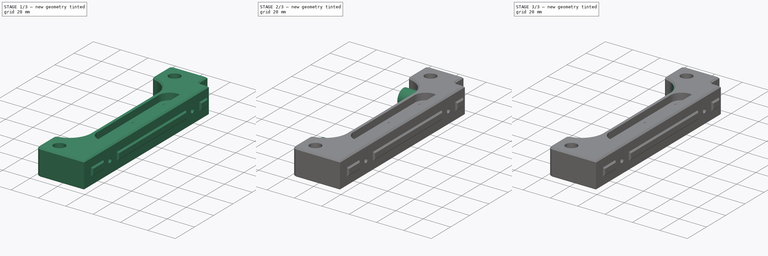
[diagram: build sequence overview — one tinted view per stage of 3, left to right]
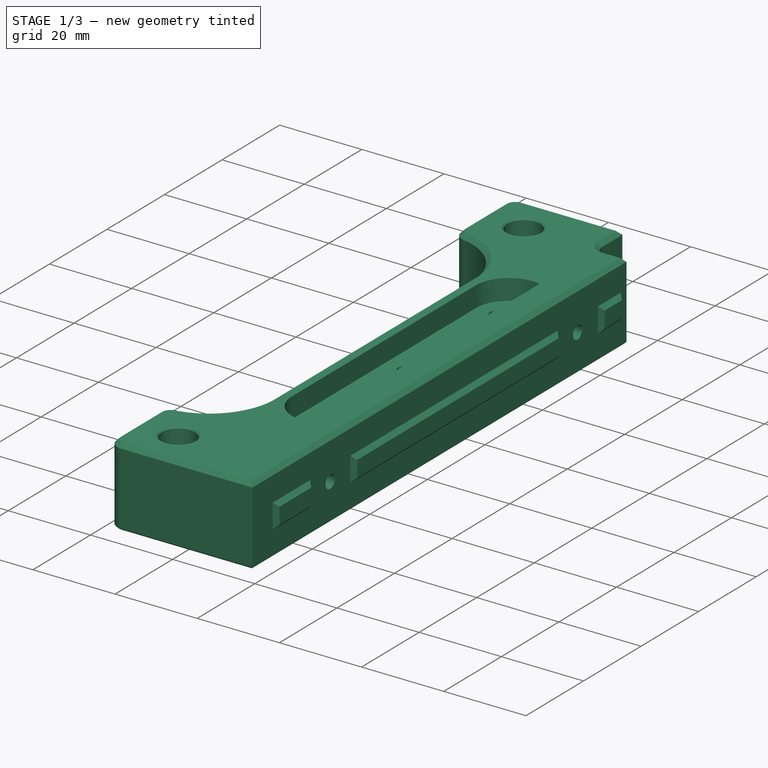
[diagram: stage 1 of 3 — iso view after this stage's code; geometry added in this stage tinted green]
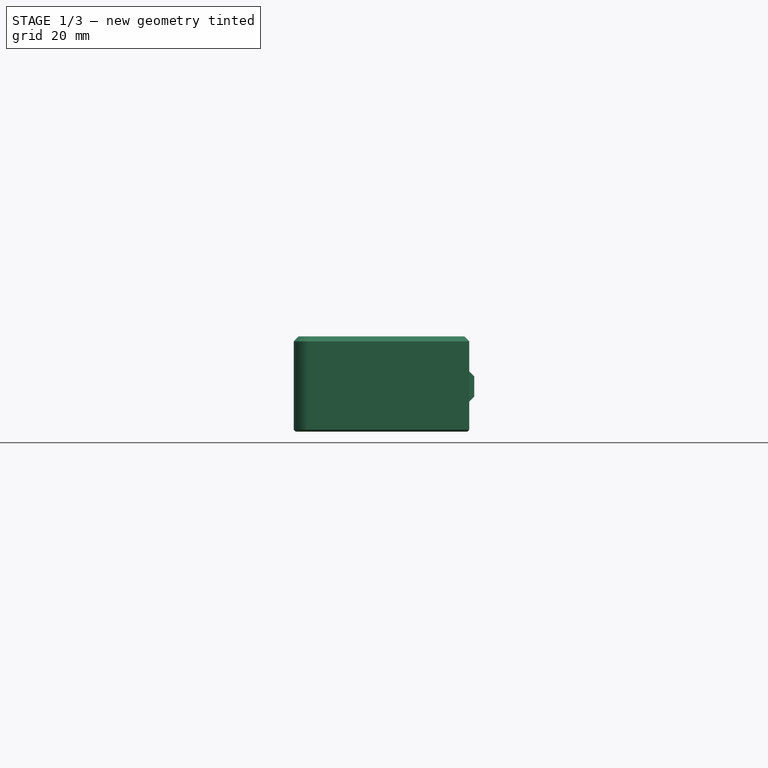
[diagram: stage 1 of 3 — front view after this stage's code; geometry added in this stage tinted green]
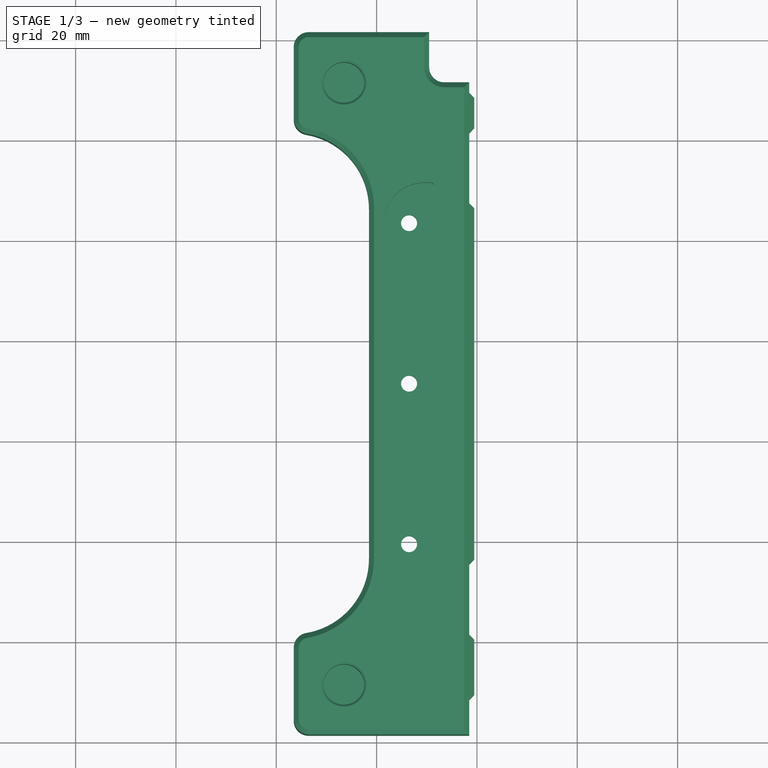
[diagram: stage 1 of 3 — top view after this stage's code; geometry added in this stage tinted green]
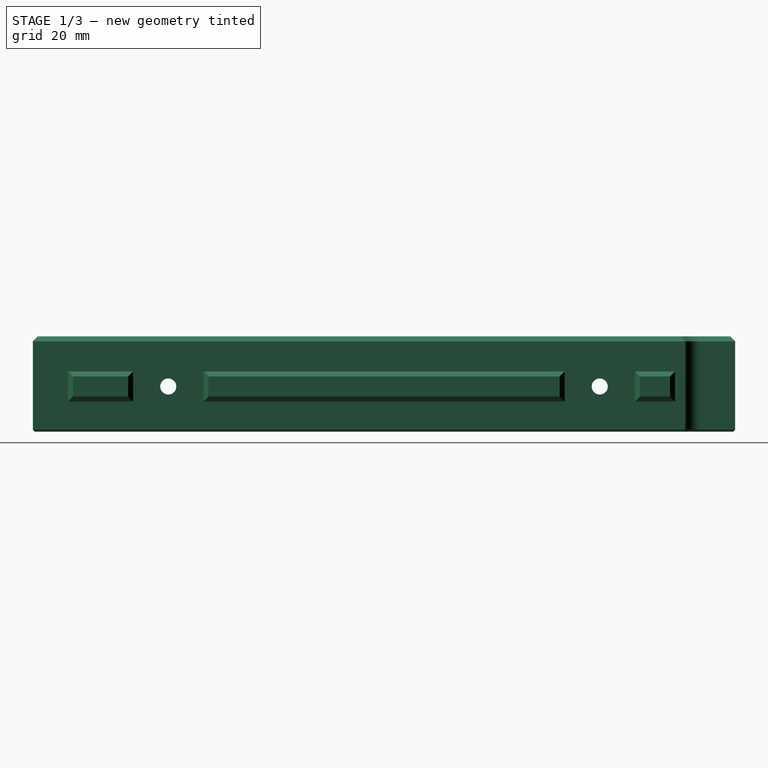
[diagram: stage 1 of 3 — right view after this stage's code; geometry added in this stage tinted green]
FCSTD DOCUMENT  (FreeCAD 2023.810R14555 (Git shallow))
Label: Trident_Internal_Spool___back_foot_m3
License: All rights reserved
LicenseURL: https://en.wikipedia.org/wiki/All_rights_reserved
objects: Sketcher::SketchObject×4, PartDesign::Pad×3, PartDesign::SubShapeBinder×2, Part::Feature×1, Part::Refine×1, PartDesign::FeatureBase×1, PartDesign::Pocket×1, PartDesign::Boolean×1, PartDesign::Body×1
note: 29 computed .brp shape members not serialized (recipe doc carries the construction recipe); baked Part::Feature solids carry a one-line shape summary decoded from their .brp

FEATURE [Part::Feature] Trident_Internal_Spool___back_foot_001_solid  label="Trident_Internal_Spool___back_foot_001 (Solid)"
  FixShape = 1
  InvalidShape = false
  TreeRank = 3
  ValidateShape = false
  shape: bbox 36 x 140 x 19 mm, 5928 faces (baked)
FEATURE [Part::Refine] Refined  label="Trident_Internal_Spool___back_foot_001 (Solid)001"
  FixShape = 1
  InvalidShape = false
  Source = -> Trident_Internal_Spool___back_foot_001_solid
  TreeRank = 4
  ValidateShape = false
FEATURE [PartDesign::FeatureBase] BaseFeature
  BaseFeature = -> Refined
  FixShape = 1
  InvalidShape = false
  NewSolid = false
  Suppress = false
  TreeRank = 14
  ValidateShape = false
FEATURE [Sketcher::SketchObject] Sketch
  ArcFitTolerance = 1e-06
  AttachmentSupport = -> [BaseFeature]
  ExternalBSplineMaxDegree = 5
  ExternalBSplineTolerance = 0.0001
  ExternalGeometry = -> [BaseFeature]
  FixShape = 1
  FullyConstrained = true
  InternalTolerance = 1e-06
  InvalidShape = false
  MakeInternals = false
  MapMode = 5
  Placement = pos=(218.473,0,0) rot=(0.57735,0.57735,0.57735;2.0944rad)
  Support = -> [BaseFeature]
  TreeRank = 18
  ValidateShape = false
  sketch-geometry (6):
    g0: Circle [constr] CenterX=108.375 CenterY=9 CenterZ=0 NormalX=0 NormalY=0 NormalZ=1 AngleXU=0 Radius=2.6
    g1: Circle CenterX=108.375 CenterY=9 CenterZ=0 NormalX=0 NormalY=0 NormalZ=1 AngleXU=0 Radius=1.6
    g2: Circle CenterX=108.375 CenterY=9 CenterZ=0 NormalX=0 NormalY=0 NormalZ=1 AngleXU=0 Radius=2.75
    g3: Circle [constr] CenterX=194.375 CenterY=9 CenterZ=0 NormalX=0 NormalY=0 NormalZ=1 AngleXU=0 Radius=2.6
    g4: Circle CenterX=194.375 CenterY=9 CenterZ=0 NormalX=0 NormalY=0 NormalZ=1 AngleXU=0 Radius=1.6
    g5: Circle CenterX=194.375 CenterY=9 CenterZ=0 NormalX=0 NormalY=0 NormalZ=1 AngleXU=0 Radius=2.75
  constraints (14):
    c: PointOnObject(g-4,g0)
    c: PointOnObject(g-5,g0)
    c: PointOnObject(g-3,g0)
    c: Coincident(g1,g0)
    c: Coincident(g2,g1)
    c: Diameter(g1) = 3.2
    c: Diameter(g2) = 5.5
    c: PointOnObject(g-6,g3)
    c: PointOnObject(g-7,g3)
    c: PointOnObject(g-8,g3)
    c: Coincident(g4,g3)
    c: Coincident(g5,g4)
    c: Diameter(g4) = 3.2
    c: Diameter(g5) = 5.5
FEATURE [PartDesign::Pad] Pad
  AddSubType = 0
  AlongSketchNormal = false
  AutoTaperInnerAngle = true
  BaseFeature = -> BaseFeature
  CheckUpToFaceLimits = true
  ClaimChildren = false
  Direction = (1,0,0)
  Fit = 0
  FitJoin = 0
  FixShape = 1
  InnerFit = 0
  InnerFitJoin = 0
  InvalidShape = false
  Length = 10
  Length2 = 10
  Linearize = true
  NewSolid = false
  Profile = -> Sketch
  ReferenceAxis = -> Sketch [N_Axis]
  Refine = true
  Suppress = false
  TaperInnerAngle = 0
  TaperInnerAngleRev = 0
  TreeRank = 19
  Type = 3
  UpToFace = -> BaseFeature [Face3661]
  ValidateShape = false
  _ProfileBasedVersion = 1
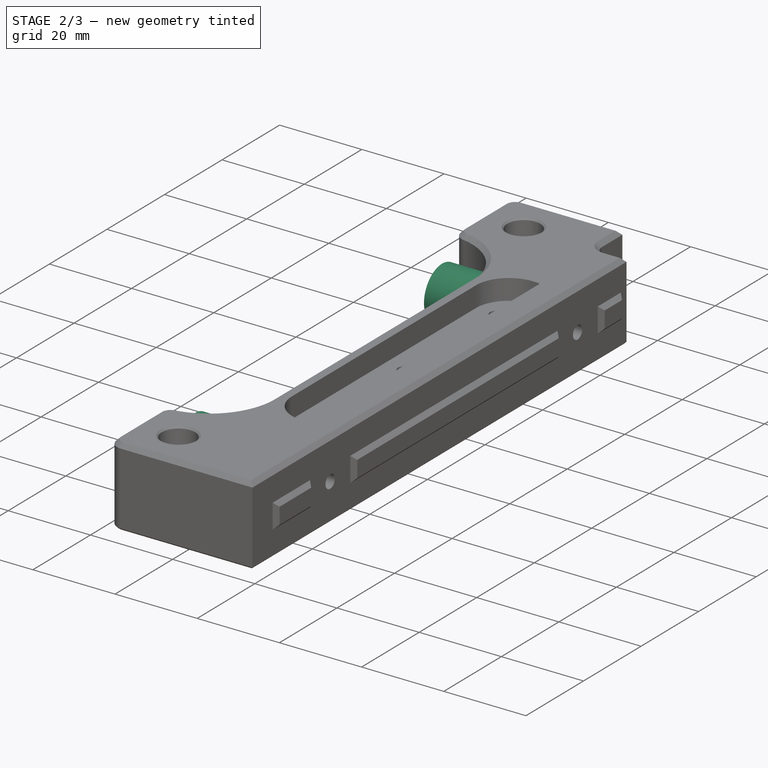
[diagram: stage 2 of 3 — iso view after this stage's code; geometry added in this stage tinted green]
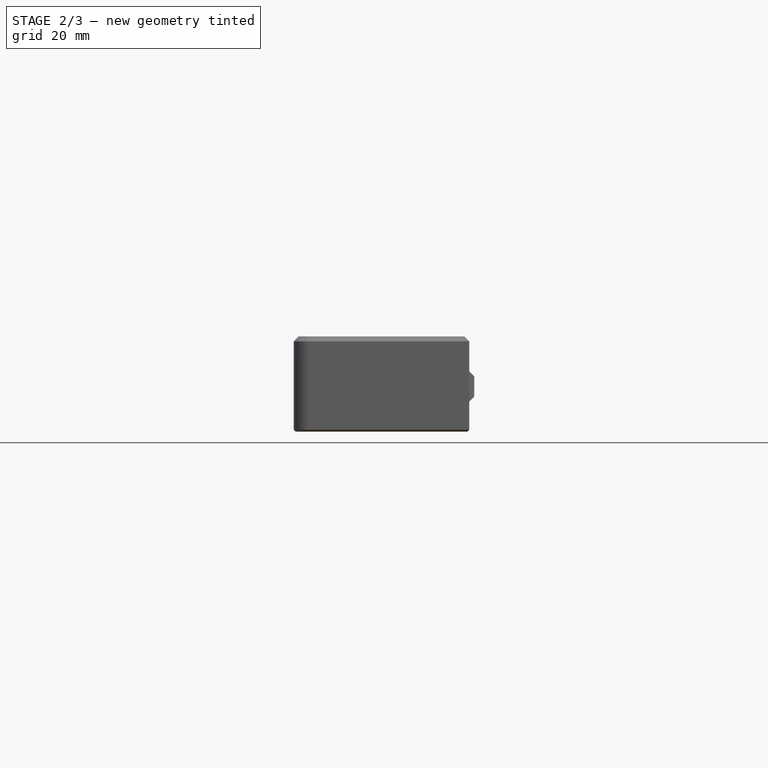
[diagram: stage 2 of 3 — front view after this stage's code; geometry added in this stage tinted green]
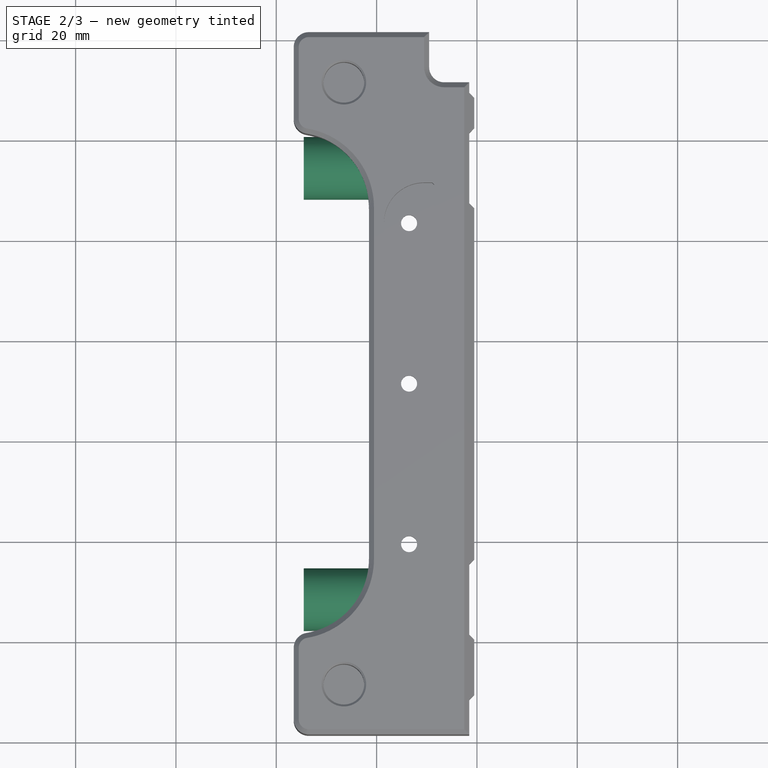
[diagram: stage 2 of 3 — top view after this stage's code; geometry added in this stage tinted green]
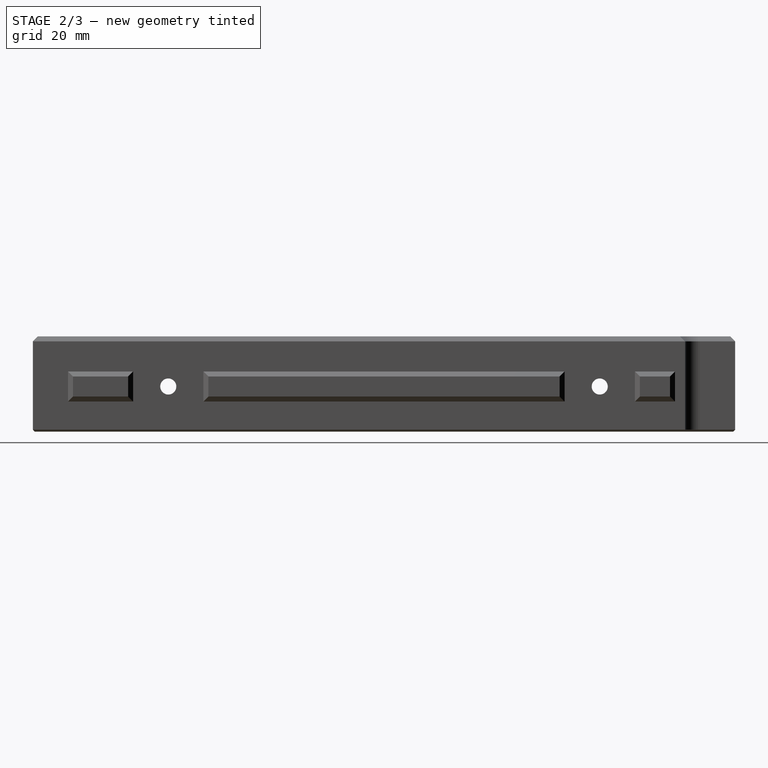
[diagram: stage 2 of 3 — right view after this stage's code; geometry added in this stage tinted green]
FEATURE [Sketcher::SketchObject] Sketch001
  ArcFitTolerance = 1e-06
  AttachmentSupport = -> [Pad]
  ExternalBSplineMaxDegree = 5
  ExternalBSplineTolerance = 0.0001
  ExternalGeometry = -> [Pad]
  FixShape = 1
  FullyConstrained = true
  InternalTolerance = 1e-06
  InvalidShape = false
  MakeInternals = false
  MapMode = 5
  Placement = pos=(207.473,0,0) rot=(0.57735,-0.57735,-0.57735;2.0944rad)
  Support = -> [Pad]
  TreeRank = 20
  ValidateShape = false
  sketch-geometry (4):
    g0: Circle CenterX=-108.375 CenterY=9 CenterZ=0 NormalX=0 NormalY=0 NormalZ=1 AngleXU=0 Radius=3
    g1: Circle CenterX=-108.375 CenterY=9 CenterZ=0 NormalX=0 NormalY=0 NormalZ=1 AngleXU=0 Radius=5.5
    g2: Circle CenterX=-194.375 CenterY=9 CenterZ=0 NormalX=0 NormalY=0 NormalZ=1 AngleXU=0 Radius=3
    g3: Circle CenterX=-194.375 CenterY=9 CenterZ=0 NormalX=0 NormalY=0 NormalZ=1 AngleXU=0 Radius=5.5
  constraints (8):
    c: Coincident(g0,g-3)
    c: Coincident(g1,g0)
    c: Diameter(g0) = 6
    c: Diameter(g1) = 11
    c: Coincident(g2,g-4)
    c: Coincident(g3,g2)
    c: Diameter(g2) = 6
    c: Diameter(g3) = 11
FEATURE [PartDesign::Pad] Pad001
  AddSubType = 0
  AlongSketchNormal = false
  AutoTaperInnerAngle = true
  BaseFeature = -> Pad
  CheckUpToFaceLimits = true
  ClaimChildren = false
  Direction = (-1,0,0)
  Fit = 0
  FitJoin = 0
  FixShape = 1
  InnerFit = 0
  InnerFitJoin = 0
  InvalidShape = false
  Length = 7
  Length2 = 10
  Linearize = true
  NewSolid = false
  Profile = -> Sketch001
  ReferenceAxis = -> Sketch001 [N_Axis]
  Refine = true
  Suppress = false
  TaperInnerAngle = 0
  TaperInnerAngleRev = 0
  TreeRank = 21
  Type = 0
  ValidateShape = false
  _ProfileBasedVersion = 1
FEATURE [Sketcher::SketchObject] Sketch002
  ArcFitTolerance = 1e-06
  AttachmentSupport = -> [Pad001]
  ExternalBSplineMaxDegree = 5
  ExternalBSplineTolerance = 0.0001
  ExternalGeometry = -> [Pad001]
  FixShape = 1
  FullyConstrained = true
  InternalTolerance = 1e-06
  InvalidShape = false
  MakeInternals = false
  MapMode = 5
  Placement = pos=(200.473,0,0) rot=(0.57735,-0.57735,-0.57735;2.0944rad)
  Support = -> [Pad001]
  TreeRank = 22
  ValidateShape = false
  sketch-geometry (2):
    g0: Circle CenterX=-108.375 CenterY=9 CenterZ=0 NormalX=0 NormalY=0 NormalZ=1 AngleXU=0 Radius=6.25
    g1: Circle CenterX=-194.375 CenterY=9 CenterZ=0 NormalX=0 NormalY=0 NormalZ=1 AngleXU=0 Radius=6.25
  constraints (4):
    c: Coincident(g0,g-3)
    c: Diameter(g0) = 12.5
    c: Coincident(g1,g-4)
    c: Diameter(g1) = 12.5
FEATURE [PartDesign::Pad] Pad002
  AddSubType = 0
  AlongSketchNormal = false
  AutoTaperInnerAngle = true
  BaseFeature = -> Pad001
  CheckUpToFaceLimits = true
  ClaimChildren = false
  Direction = (-1,0,0)
  Fit = 0
  FitJoin = 0
  FixShape = 1
  InnerFit = 0
  InnerFitJoin = 0
  InvalidShape = false
  Length = 15
  Length2 = 10
  Linearize = true
  NewSolid = false
  Profile = -> Sketch002
  ReferenceAxis = -> Sketch002 [N_Axis]
  Refine = true
  Suppress = false
  TaperInnerAngle = 0
  TaperInnerAngleRev = 0
  TreeRank = 26
  Type = 0
  ValidateShape = false
  _ProfileBasedVersion = 1
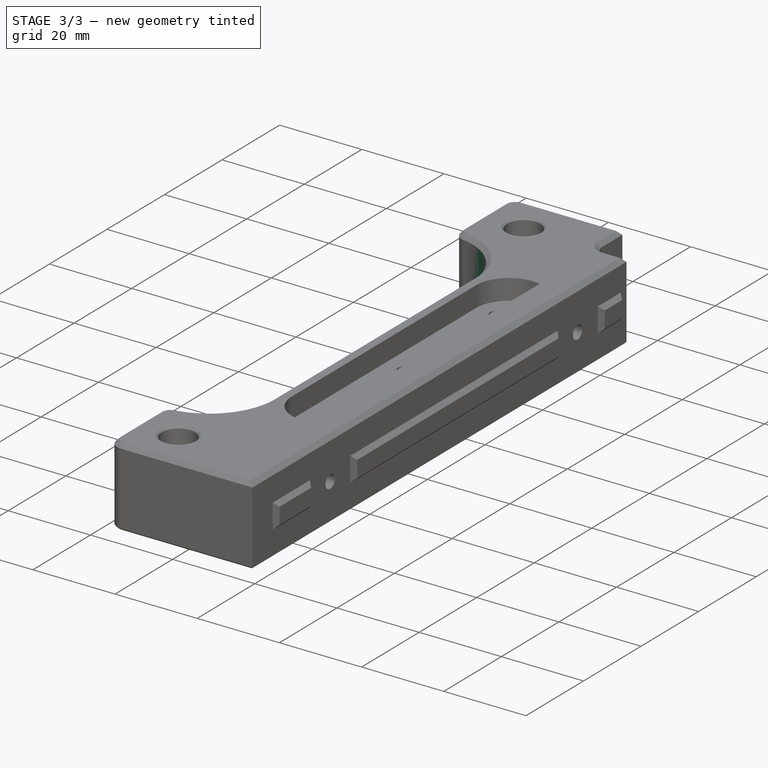
[diagram: stage 3 of 3 — iso view after this stage's code; geometry added in this stage tinted green]
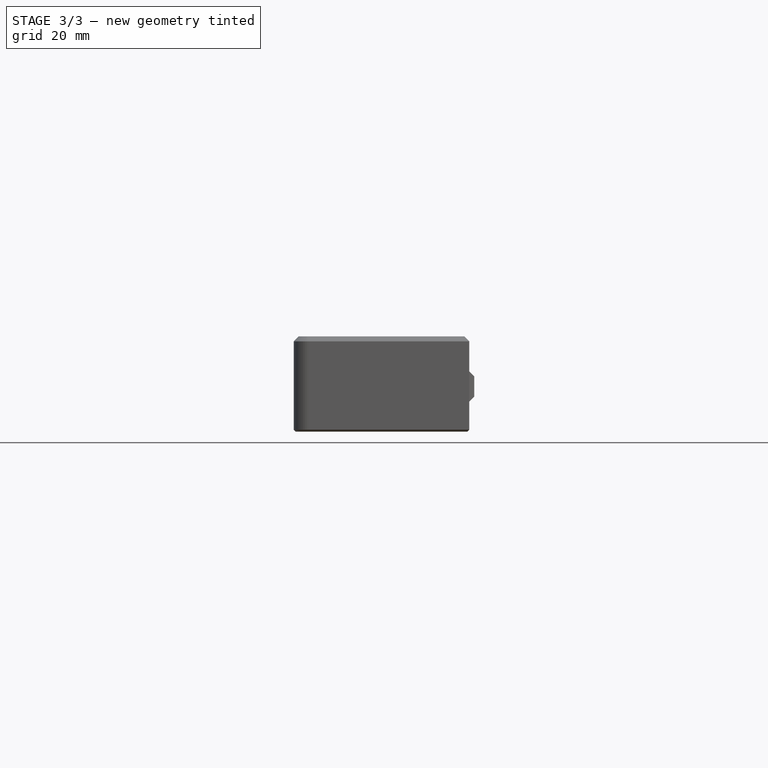
[diagram: stage 3 of 3 — front view after this stage's code; geometry added in this stage tinted green]
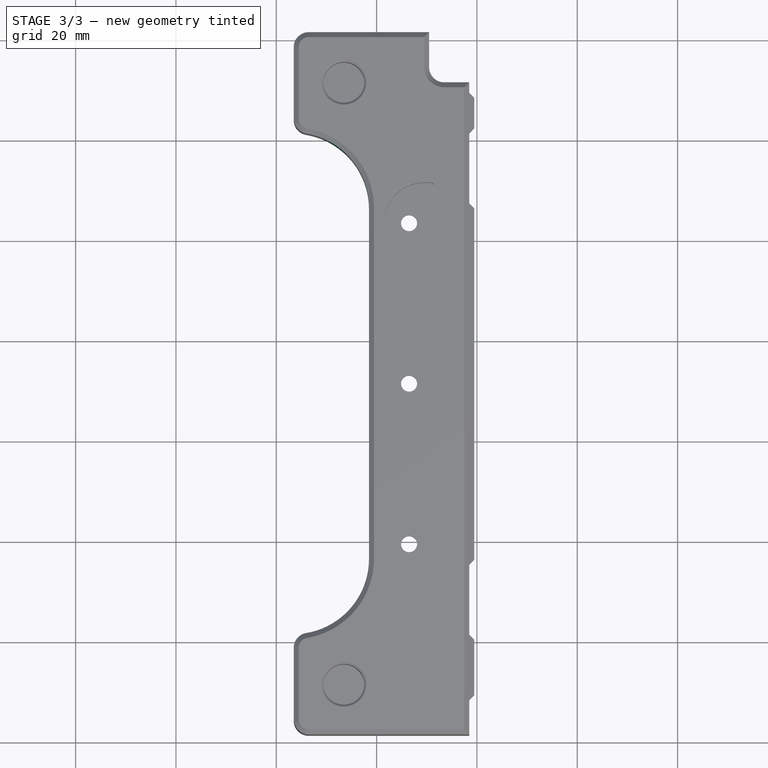
[diagram: stage 3 of 3 — top view after this stage's code; geometry added in this stage tinted green]
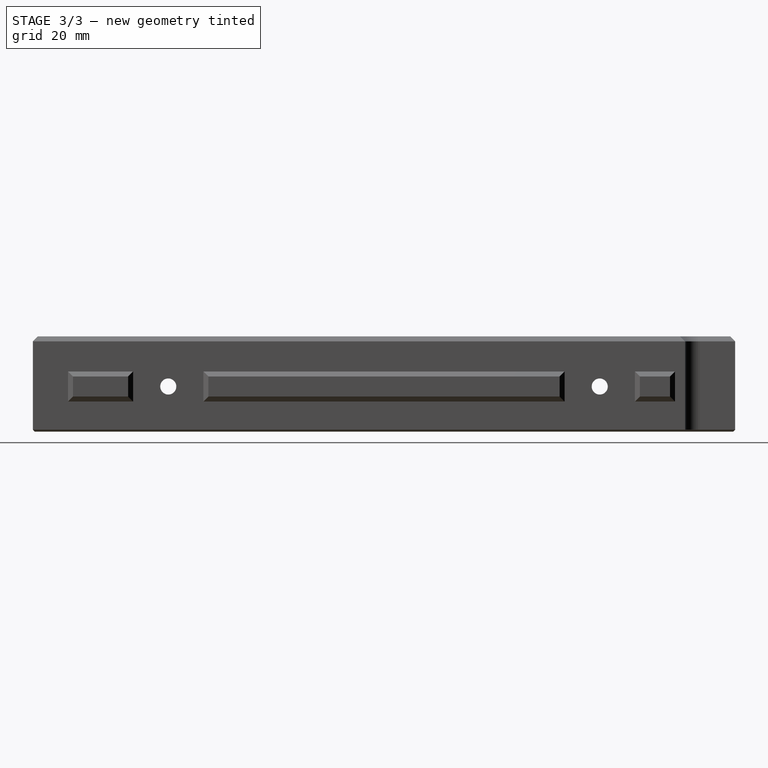
[diagram: stage 3 of 3 — right view after this stage's code; geometry added in this stage tinted green]
FEATURE [Sketcher::SketchObject] Sketch003
  ArcFitTolerance = 1e-06
  AttachmentSupport = -> [Pad002]
  ExternalBSplineMaxDegree = 5
  ExternalBSplineTolerance = 0.0001
  ExternalGeometry = -> [Pad002]
  FixShape = 1
  FullyConstrained = true
  InternalTolerance = 1e-06
  InvalidShape = false
  MakeInternals = false
  MapMode = 5
  Placement = pos=(0,0,4.2e-15) rot=(1,0,0;3.14159rad)
  Support = -> [Pad002]
  TreeRank = 24
  ValidateShape = false
  sketch-geometry (11):
    g0: Circle [constr] CenterX=186.473 CenterY=-98.6267 CenterZ=0 NormalX=0 NormalY=0 NormalZ=1 AngleXU=0 Radius=2.99998
    g1: Circle [constr] CenterX=183.473 CenterY=-116.375 CenterZ=0 NormalX=0 NormalY=0 NormalZ=1 AngleXU=0 Radius=15
    g2: ArcOfCircle CenterX=186.473 CenterY=-98.6267 CenterZ=0 NormalX=0 NormalY=0 NormalZ=1 AngleXU=0 Radius=2.99999 StartAngle=3.14159 EndAngle=4.54494
    g3: ArcOfCircle CenterX=183.473 CenterY=-116.375 CenterZ=0 NormalX=0 NormalY=0 NormalZ=1 AngleXU=0 Radius=15 StartAngle=5.62326e-07 EndAngle=1.40335
    g4: LineSegment StartX=183.473 StartY=-98.6267 StartZ=0 EndX=173.473 EndY=-98.6267 EndZ=0
    g5: Circle [constr] CenterX=186.473 CenterY=-204.123 CenterZ=0 NormalX=0 NormalY=0 NormalZ=1 AngleXU=0 Radius=2.99993
    g6: Circle [constr] CenterX=183.473 CenterY=-186.375 CenterZ=0 NormalX=0 NormalY=0 NormalZ=1 AngleXU=0 Radius=15
    g7: ArcOfCircle CenterX=186.473 CenterY=-204.123 CenterZ=0 NormalX=0 NormalY=0 NormalZ=1 AngleXU=0 Radius=2.99996 StartAngle=1.73823 EndAngle=3.1416
    g8: ArcOfCircle CenterX=183.473 CenterY=-186.375 CenterZ=0 NormalX=0 NormalY=0 NormalZ=1 AngleXU=0 Radius=15 StartAngle=4.87984 EndAngle=6.28319
    g9: LineSegment StartX=173.473 StartY=-98.6267 StartZ=0 EndX=173.473 EndY=-204.123 EndZ=0
    g10: LineSegment StartX=173.473 StartY=-204.123 StartZ=0 EndX=183.473 EndY=-204.123 EndZ=0
  constraints (32):
    c: PointOnObject(g-4,g0)
    c: PointOnObject(g-6,g0)
    c: PointOnObject(g-5,g0)
    c: PointOnObject(g-7,g1)
    c: PointOnObject(g-3,g1)
    c: PointOnObject(g-8,g1)
    c: Coincident(g2,g-4)
    c: Coincident(g2,g-9)
    c: PointOnObject(g-5,g2)
    c: Coincident(g3,g2)
    c: Coincident(g3,g-3)
    c: PointOnObject(g-8,g3)
    c: Coincident(g4,g2)
    c: Horizontal(g4)
    c: DistanceX(g4,g4) = 10
    c: PointOnObject(g-13,g5)
    c: PointOnObject(g-12,g5)
    c: PointOnObject(g-14,g5)
    c: PointOnObject(g-3,g6)
    c: PointOnObject(g-11,g6)
    c: PointOnObject(g-10,g6)
    c: Coincident(g7,g-13)
    c: Coincident(g7,g-15)
    c: PointOnObject(g-14,g7)
    c: Coincident(g8,g-3)
    c: Coincident(g8,g7)
    c: PointOnObject(g-10,g8)
    c: Coincident(g9,g4)
    c: Vertical(g9)
    c: Coincident(g10,g9)
    c: Coincident(g10,g7)
    c: Horizontal(g10)
FEATURE [PartDesign::Pocket] Pocket
  AddSubType = 0
  AlongSketchNormal = false
  AutoTaperInnerAngle = true
  CheckUpToFaceLimits = true
  ClaimChildren = false
  Direction = (0,0,1)
  Fit = 0
  FitJoin = 0
  FixShape = 1
  InnerFit = 0
  InnerFitJoin = 0
  InvalidShape = false
  Length = 30
  Length2 = 10
  Linearize = true
  NewSolid = true
  Profile = -> Sketch003
  ReferenceAxis = -> Sketch003 [N_Axis]
  Refine = true
  Suppress = false
  TaperInnerAngle = 0
  TaperInnerAngleRev = 0
  TreeRank = 25
  Type = 0
  ValidateShape = false
  _ProfileBasedVersion = 1
  _Version = 1
FEATURE [PartDesign::SubShapeBinder] Reference  label="Reference(Pocket)"
  BindCopyOnChange = 0
  BindMode = 0
  ClaimChildren = false
  Context = -> Body [Boolean.Reference.]
  EdgeTolerance = 1e-06
  FillStyle = 0
  FixShape = 1
  Fuse = false
  InvalidShape = false
  MakeFace = true
  MergeEdges = true
  OffsetFill = false
  OffsetIntersection = false
  OffsetJoinType = 0
  OffsetOpenResult = false
  Outline = false
  PartialLoad = false
  Relative = true
  SplitEdges = false
  Support = -> [Pocket]
  TightBound = false
  TreeRank = 30
  ValidateShape = false
  _Version = 8
FEATURE [PartDesign::SubShapeBinder] Reference001  label="Reference001(Pad002)"
  BindCopyOnChange = 0
  BindMode = 0
  ClaimChildren = false
  Context = -> Body [Boolean.Reference001.]
  EdgeTolerance = 1e-06
  FillStyle = 0
  FixShape = 1
  Fuse = false
  InvalidShape = false
  MakeFace = true
  MergeEdges = true
  OffsetFill = false
  OffsetIntersection = false
  OffsetJoinType = 0
  OffsetOpenResult = false
  Outline = false
  PartialLoad = false
  Relative = true
  SplitEdges = false
  Support = -> [Pad002]
  TightBound = false
  TreeRank = 31
  ValidateShape = false
  _Version = 8
FEATURE [PartDesign::Boolean] Boolean
  BaseFeature = -> Pocket
  ClaimAllChildren = false
  ExportMode = 0
  FixShape = 1
  Group = -> [Reference001,Reference]
  InvalidShape = false
  NewSolid = false
  Refine = true
  Suppress = false
  TreeRank = 32
  Type = 1
  ValidateShape = false
  _ExportChildren = -> [Reference001,Reference]
  _GroupVersion = 1
FEATURE [PartDesign::Body] Body
  AutoGroupSolids = false
  BaseFeature = -> Refined
  ClaimAllChildren = false
  ExportMode = 0
  FixShape = 1
  Group = -> [BaseFeature,Sketch,Pad,Sketch001,Pad001,Sketch002,Pad002,Sketch003,Pocket,Boolean]
  InvalidShape = false
  Origin = -> Origin
  Tip = -> Boolean
  TreeRank = 17
  ValidateShape = false
  _ExportChildren = -> [BaseFeature,Pad,Pad001,Pad002,Pocket,Boolean]
  _GroupVersion = 1
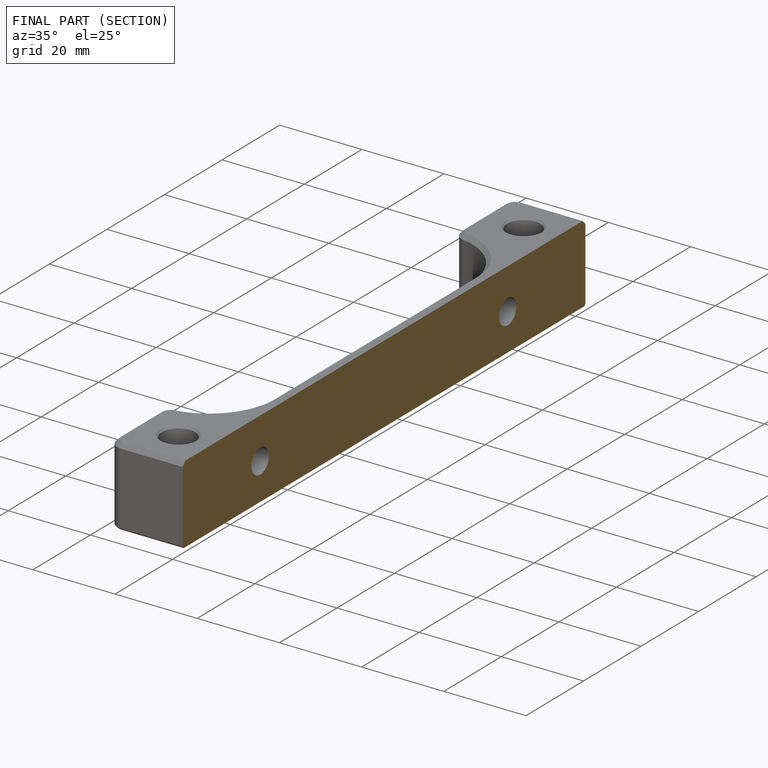
[diagram: finished part — half-section view (interior)]
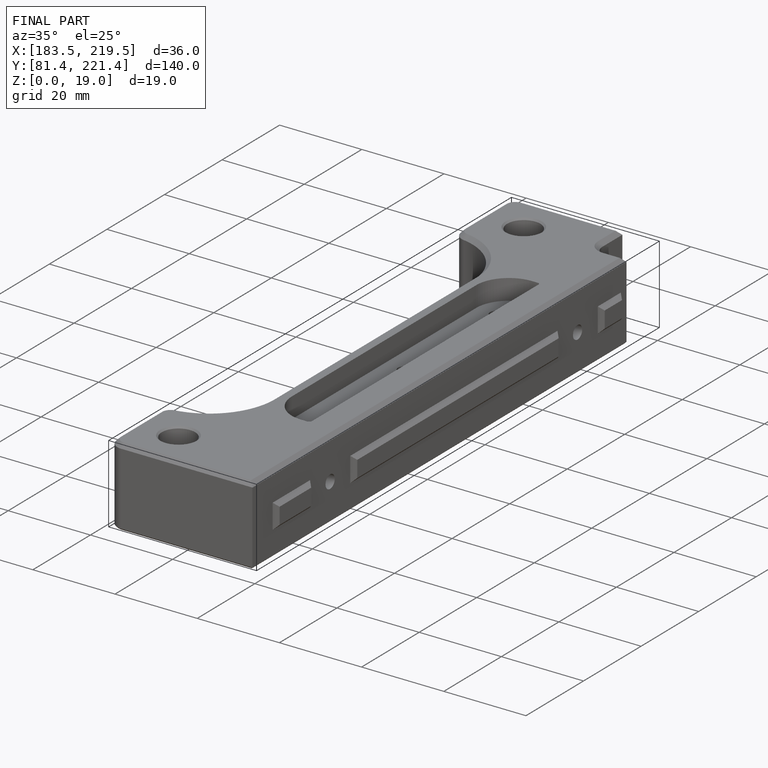
[diagram: finished part — iso view with bounding-box wireframe]
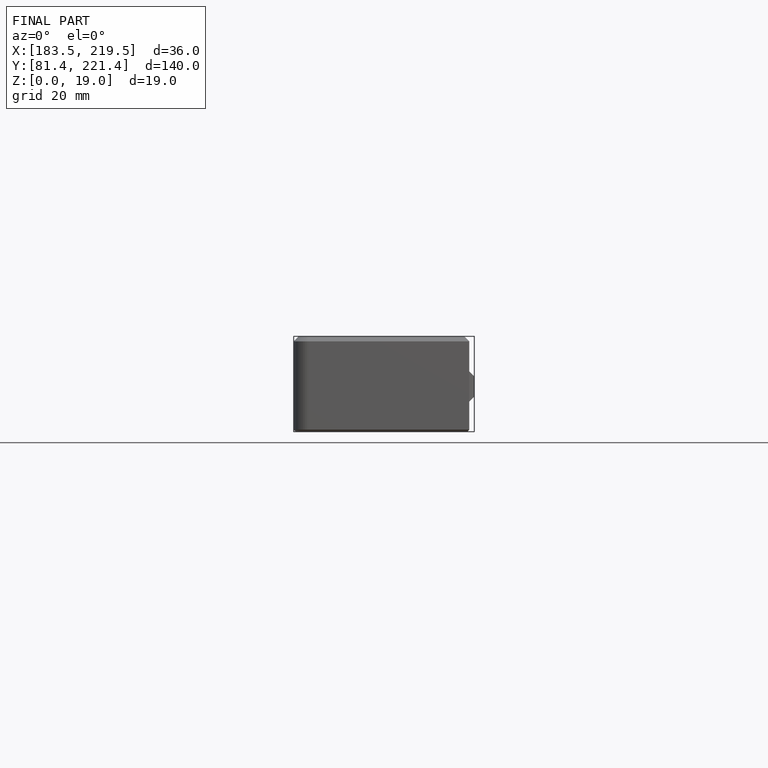
[diagram: finished part — front view with bounding-box wireframe]
